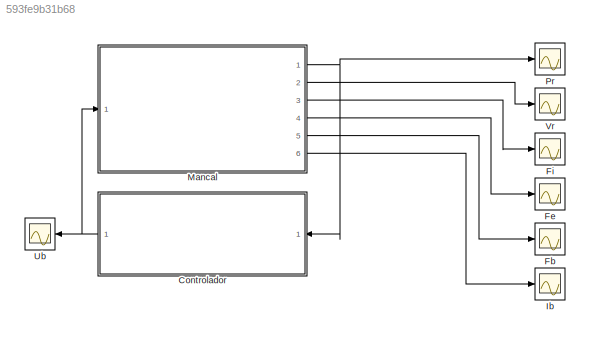
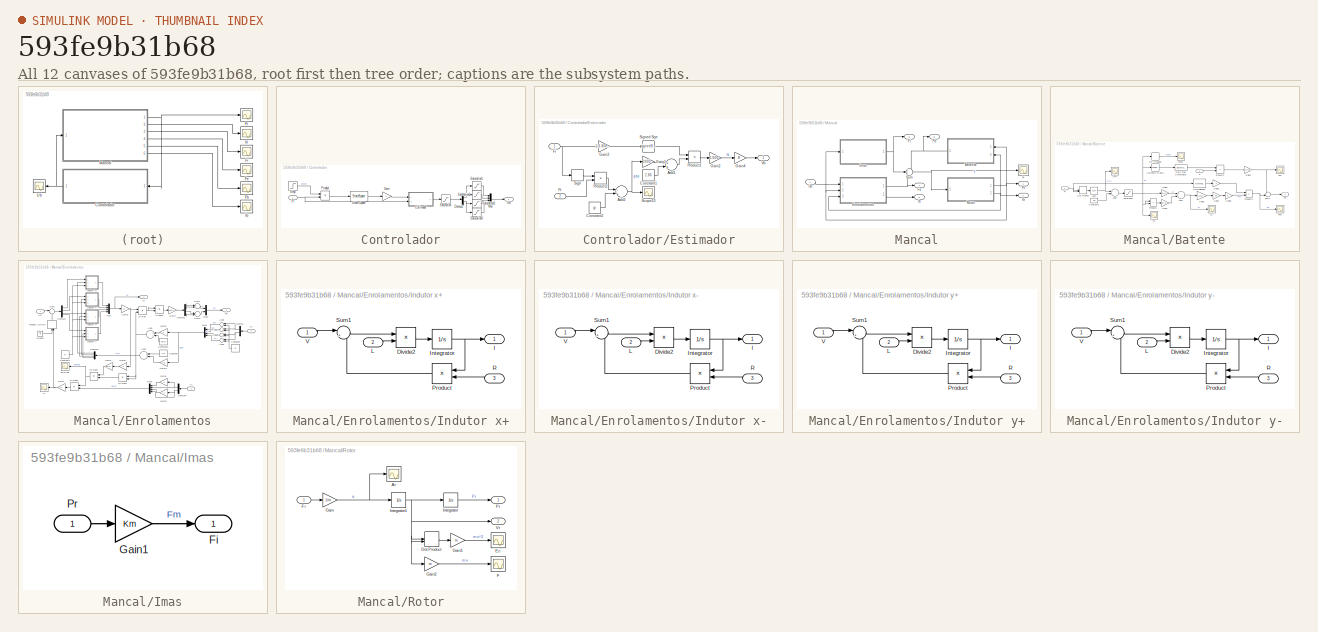
[diagram: thumbnail index - all 12 canvases of the model, root first then tree order]
MODEL slx_593fe9b31b68
KIND model
BLOCK [SubSystem] Controlador
  FunctionWithSeparateData = off
  MaskHideContents = off
  MinAlgLoopOccurrences = off
  Opaque = off
  Ports = [1, 1]
  PropExecContextOutsideSubsystem = off
  RTWSystemCode = Auto
  RequestExecContextInheritance = off
BLOCK [Demux] Controlador/Demux1
  DisplayOption = bar
  Outputs = 2
  Ports = [1, 2]
BLOCK [SubSystem] Controlador/Estimador
  FunctionWithSeparateData = off
  MaskHideContents = off
  MinAlgLoopOccurrences = off
  Opaque = off
  Ports = [2, 1]
  PropExecContextOutsideSubsystem = off
  RTWSystemCode = Auto
  RequestExecContextInheritance = off
BLOCK [Sum] Controlador/Estimador/Add1
  InputSameDT = off
  OutDataTypeStr = Inherit: Inherit via internal rule
  Ports = [2, 1]
  SaturateOnIntegerOverflow = off
BLOCK [Sum] Controlador/Estimador/Add2
  InputSameDT = off
  Inputs = -+
  OutDataTypeStr = Inherit: Inherit via internal rule
  Ports = [2, 1]
  SaturateOnIntegerOverflow = off
BLOCK [Constant] Controlador/Estimador/Constant1
  Value = 2.86
BLOCK [Constant] Controlador/Estimador/Constant2
  Value = gi
BLOCK [Inport] Controlador/Estimador/Fi
  IconDisplay = Port number
BLOCK [Gain] Controlador/Estimador/Gain1
  Gain = 2000
  OutDataTypeStr = Inherit: Inherit via internal rule
  ParamDataTypeStr = Inherit: Inherit via internal rule
  SaturateOnIntegerOverflow = off
BLOCK [Gain] Controlador/Estimador/Gain2
  Gain = 1/300
  OutDataTypeStr = Inherit: Inherit via internal rule
  ParamDataTypeStr = Inherit: Inherit via internal rule
  SaturateOnIntegerOverflow = off
BLOCK [Gain] Controlador/Estimador/Gain3
  Gain = 1/3.80e-3
  OutDataTypeStr = Inherit: Inherit via internal rule
  ParamDataTypeStr = Inherit: Inherit via internal rule
  SaturateOnIntegerOverflow = off
BLOCK [Gain] Controlador/Estimador/Gain4
  Gain = R
  OutDataTypeStr = Inherit: Inherit via internal rule
  ParamDataTypeStr = Inherit: Inherit via internal rule
  SaturateOnIntegerOverflow = off
BLOCK [Inport] Controlador/Estimador/Pr
  IconDisplay = Port number
  Port = 2
BLOCK [Product] Controlador/Estimador/Product1
  InputSameDT = off
  OutDataTypeStr = Inherit: Inherit via internal rule
  Ports = [2, 1]
  RndMeth = Floor
  SaturateOnIntegerOverflow = off
BLOCK [Product] Controlador/Estimador/Product2
  InputSameDT = off
  OutDataTypeStr = Inherit: Inherit via internal rule
  Ports = [2, 1]
  RndMeth = Floor
  SaturateOnIntegerOverflow = off
BLOCK [Scope] Controlador/Estimador/Scope10
  DataFormat = StructureWithTime
  Floating = off
  LimitDataPoints = off
  NumInputPorts = 1
  Ports = [1]
  SampleTime = 0
  SaveName = ScopeData11
  ShowLegends = off
  TimeRange = 2.85171102661597
  YMax = 0.0006
  YMin = 0.00015
BLOCK [Signum] Controlador/Estimador/Sign
BLOCK [Sqrt] Controlador/Estimador/Signed Sqrt
  Operator = signedSqrt
BLOCK [Outport] Controlador/Estimador/Vb
  IconDisplay = Port number
BLOCK [Gain] Controlador/Gain
  Gain = -1
  OutDataTypeStr = Inherit: Inherit via internal rule
  ParamDataTypeStr = Inherit: Inherit via internal rule
  SaturateOnIntegerOverflow = off
BLOCK [Mux] Controlador/Mux
  DisplayOption = bar
  Ports = [4, 1]
BLOCK [Inport] Controlador/Pr
  IconDisplay = Port number
BLOCK [Product] Controlador/Product
  InputSameDT = off
  OutDataTypeStr = Inherit: Inherit via internal rule
  Ports = [2, 1]
  RndMeth = Floor
  SaturateOnIntegerOverflow = off
BLOCK [Saturate] Controlador/Saturation
  InputPortMap = u0
  LowerLimit = -Vmax
  Ports = [1, 1]
  UpperLimit = Vmax
BLOCK [Saturate] Controlador/Saturation1
  InputPortMap = u0
  LowerLimit = 0
  Ports = [1, 1]
  UpperLimit = Inf
BLOCK [Saturate] Controlador/Saturation2
  InputPortMap = u0
  LowerLimit = -Inf
  Ports = [1, 1]
  UpperLimit = 0
BLOCK [Saturate] Controlador/Saturation3
  InputPortMap = u0
  LowerLimit = 0
  Ports = [1, 1]
  UpperLimit = Inf
BLOCK [Saturate] Controlador/Saturation4
  InputPortMap = u0
  LowerLimit = -Inf
  Ports = [1, 1]
  UpperLimit = 0
BLOCK [StateSpace] Controlador/State-Space
  A = ss([C 1; 1 C]).A
  B = ss([C 1; 1 C]).B
  C = ss([C 1; 1 C]).C
  D = ss([C 1; 1 C]).D
BLOCK [Step] Controlador/Step
  SampleTime = 0
BLOCK [Outport] Controlador/Ub
  IconDisplay = Port number
BLOCK [Scope] Fb
  DataFormat = StructureWithTime
  Floating = off
  LimitDataPoints = off
  NumInputPorts = 1
  Ports = [1]
  SampleTime = 0
  SaveName = ScopeData6
  ShowLegends = off
  YMax = 200000
  YMin = -200000
BLOCK [Scope] Fe
  DataFormat = StructureWithTime
  Floating = off
  LimitDataPoints = off
  NumInputPorts = 1
  Ports = [1]
  SampleTime = 0
  SaveName = ScopeData2
  ShowLegends = off
  YMax = 25
  YMin = -500
BLOCK [Scope] Fi
  DataFormat = StructureWithTime
  Floating = off
  LimitDataPoints = off
  NumInputPorts = 1
  Ports = [1]
  SampleTime = 0
  SaveName = ScopeData3
  ShowLegends = off
  YMax = 450
  YMin = 0
BLOCK [Scope] Ib
  DataFormat = StructureWithTime
  Floating = off
  LimitDataPoints = off
  NumInputPorts = 1
  Ports = [1]
  SampleTime = 0
  SaveName = ScopeData5
  ShowLegends = off
  YMax = 4
  YMin = -4
BLOCK [SubSystem] Mancal
  FunctionWithSeparateData = off
  MaskHideContents = off
  MinAlgLoopOccurrences = off
  Opaque = off
  Ports = [1, 6]
  PropExecContextOutsideSubsystem = off
  RTWSystemCode = Auto
  RequestExecContextInheritance = off
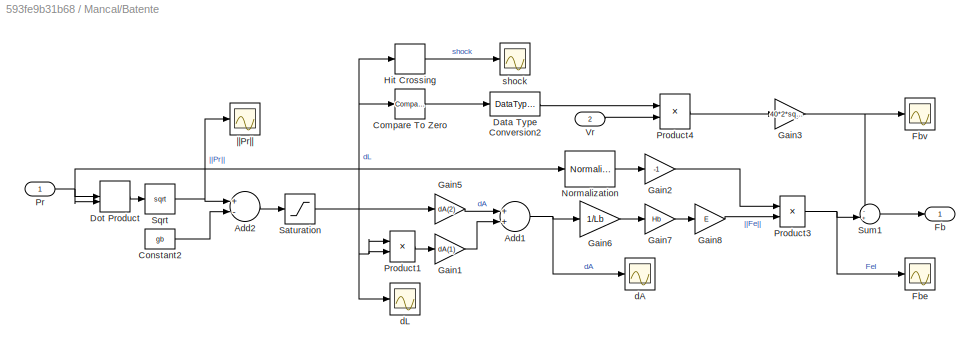
BLOCK [SubSystem] Mancal/Batente
  FunctionWithSeparateData = off
  MaskHideContents = off
  MinAlgLoopOccurrences = off
  Opaque = off
  Ports = [2, 1]
  PropExecContextOutsideSubsystem = off
  RTWSystemCode = Auto
  RequestExecContextInheritance = off
BLOCK [Sum] Mancal/Batente/Add1
  InputSameDT = off
  OutDataTypeStr = Inherit: Inherit via internal rule
  Ports = [2, 1]
  SaturateOnIntegerOverflow = off
BLOCK [Sum] Mancal/Batente/Add2
  InputSameDT = off
  Inputs = +-
  OutDataTypeStr = Inherit: Inherit via internal rule
  Ports = [2, 1]
  SaturateOnIntegerOverflow = off
BLOCK [Reference] Mancal/Batente/Compare To Zero  REF=simulink/Logic and Bit
Operations/Compare
To Zero
  OutDataTypeStr = boolean
  Ports = [1, 1]
  SourceBlock = simulink/Logic and Bit\nOperations/Compare\nTo Zero
  SourceType = Compare To Zero
  ZeroCross = on
  relop = >
BLOCK [Constant] Mancal/Batente/Constant2
  Value = gb
BLOCK [DataTypeConversion] Mancal/Batente/Data Type Conversion2
  RndMeth = Floor
  SaturateOnIntegerOverflow = off
BLOCK [DotProduct] Mancal/Batente/Dot Product
  OutDataTypeStr = Inherit: Inherit via internal rule
BLOCK [Outport] Mancal/Batente/Fb
  IconDisplay = Port number
BLOCK [Scope] Mancal/Batente/Fbe
  DataFormat = StructureWithTime
  Floating = off
  LimitDataPoints = off
  NumInputPorts = 1
  Ports = [1]
  SampleTime = 0
  SaveName = ScopeData15
  ShowLegends = off
  TimeRange = 0.0002829354553492485
  YMax = 100000
  YMin = -100000
BLOCK [Scope] Mancal/Batente/Fbv
  DataFormat = StructureWithTime
  Floating = off
  LimitDataPoints = off
  NumInputPorts = 1
  Ports = [1]
  SampleTime = 0
  SaveName = ScopeData8
  ShowLegends = off
  TimeRange = 0.1
  YMax = 225000
  YMin = -225000
BLOCK [Gain] Mancal/Batente/Gain1
  Gain = dA(1)
  OutDataTypeStr = Inherit: Inherit via internal rule
  ParamDataTypeStr = Inherit: Inherit via internal rule
  SaturateOnIntegerOverflow = off
BLOCK [Gain] Mancal/Batente/Gain2
  Gain = -1
  OutDataTypeStr = Inherit: Inherit via internal rule
  ParamDataTypeStr = Inherit: Inherit via internal rule
  SaturateOnIntegerOverflow = off
BLOCK [Gain] Mancal/Batente/Gain3
  Gain = 40*2*sqrt(Kb*m)
  OutDataTypeStr = Inherit: Inherit via internal rule
  ParamDataTypeStr = Inherit: Inherit via internal rule
  SaturateOnIntegerOverflow = off
BLOCK [Gain] Mancal/Batente/Gain5
  Gain = dA(2)
  OutDataTypeStr = Inherit: Inherit via internal rule
  ParamDataTypeStr = Inherit: Inherit via internal rule
  SaturateOnIntegerOverflow = off
BLOCK [Gain] Mancal/Batente/Gain6
  Gain = 1/Lb
  OutDataTypeStr = Inherit: Inherit via internal rule
  ParamDataTypeStr = Inherit: Inherit via internal rule
  SaturateOnIntegerOverflow = off
BLOCK [Gain] Mancal/Batente/Gain7
  Gain = Hb
  OutDataTypeStr = Inherit: Inherit via internal rule
  ParamDataTypeStr = Inherit: Inherit via internal rule
  SaturateOnIntegerOverflow = off
BLOCK [Gain] Mancal/Batente/Gain8
  Gain = E
  OutDataTypeStr = Inherit: Inherit via internal rule
  ParamDataTypeStr = Inherit: Inherit via internal rule
  SaturateOnIntegerOverflow = off
BLOCK [HitCross] Mancal/Batente/Hit Crossing
  HitCrossingDirection = rising
  Ports = [1, 1]
BLOCK [Reference] Mancal/Batente/Normalization  REF=dspmathops/Normalization
  Bias = 1e-10
  ColComp = on
  Dimension = 1
  LockScale = off
  NormOver = Each column
  NormType = 2-norm
  Ports = [1, 1]
  SourceBlock = dspmathops/Normalization
  SourceType = Normalization
  accumDataTypeStr = Inherit: Same as product output
  accumFracLength = 30
  accumLastDataTypeStr = Inherit: Same as product output
  accumMode = Same as product output
  accumWordLength = 32
  additionalParams = off
  allowOverrides = on
  outputDataTypeStr = Inherit: Same as product output
  outputFracLength = 32
  outputLastDataTypeStr = Inherit: Same as product output
  outputMax = []
  outputMin = []
  outputMode = Same as product output
  outputWordLength = 32
  overflowMode = off
  prodOutputDataTypeStr = Inherit: Same as input
  prodOutputFracLength = 32
  prodOutputLastDataTypeStr = Inherit: Same as input
  prodOutputMode = Same as input
  prodOutputWordLength = 32
  roundingMode = Floor
BLOCK [Inport] Mancal/Batente/Pr
  IconDisplay = Port number
BLOCK [Product] Mancal/Batente/Product1
  InputSameDT = off
  OutDataTypeStr = Inherit: Inherit via internal rule
  Ports = [2, 1]
  RndMeth = Floor
  SaturateOnIntegerOverflow = off
BLOCK [Product] Mancal/Batente/Product3
  InputSameDT = off
  OutDataTypeStr = Inherit: Inherit via internal rule
  Ports = [2, 1]
  RndMeth = Floor
  SaturateOnIntegerOverflow = off
BLOCK [Product] Mancal/Batente/Product4
  InputSameDT = off
  OutDataTypeStr = Inherit: Inherit via internal rule
  Ports = [2, 1]
  RndMeth = Floor
  SaturateOnIntegerOverflow = off
BLOCK [Saturate] Mancal/Batente/Saturation
  InputPortMap = u0
  LowerLimit = 0
  Ports = [1, 1]
  UpperLimit = Inf
BLOCK [Sqrt] Mancal/Batente/Sqrt
BLOCK [Sum] Mancal/Batente/Sum1
  IconShape = round
  InputSameDT = off
  Inputs = -+|
  OutDataTypeStr = Inherit: Inherit via internal rule
  Ports = [2, 1]
  SaturateOnIntegerOverflow = off
BLOCK [Inport] Mancal/Batente/Vr
  IconDisplay = Port number
  Port = 2
BLOCK [Scope] Mancal/Batente/dA
  DataFormat = StructureWithTime
  Floating = off
  LimitDataPoints = off
  NumInputPorts = 1
  Ports = [1]
  SampleTime = 0
  SaveName = ScopeData4
  ShowLegends = off
  TimeRange = 0.0002829354553492485
  YMax = 3.9158e-05
  YMin = 3.91545e-05
BLOCK [Scope] Mancal/Batente/dL
  DataFormat = StructureWithTime
  Floating = off
  LimitDataPoints = off
  NumInputPorts = 1
  Ports = [1]
  SampleTime = 0
  SaveName = ScopeData7
  ShowLegends = off
  TimeRange = 0.1
  YMax = 1.4315e-06
  YMin = 1.4215e-06
BLOCK [Scope] Mancal/Batente/shock
  DataFormat = StructureWithTime
  Floating = off
  LimitDataPoints = off
  NumInputPorts = 1
  Ports = [1]
  SampleTime = 0
  SaveName = ScopeData19
  ShowLegends = off
  TimeRange = 0.0002829354553492485
  YMax = 5.54639e-16
  YMin = 5.54637e-16
BLOCK [Scope] Mancal/Batente/||Pr||
  DataFormat = StructureWithTime
  Floating = off
  LimitDataPoints = off
  NumInputPorts = 1
  Ports = [1]
  SampleTime = 0
  SaveName = ScopeData18
  ShowLegends = off
  TimeRange = 0.0002829354553492485
  YMax = 0
  YMin = -2.75
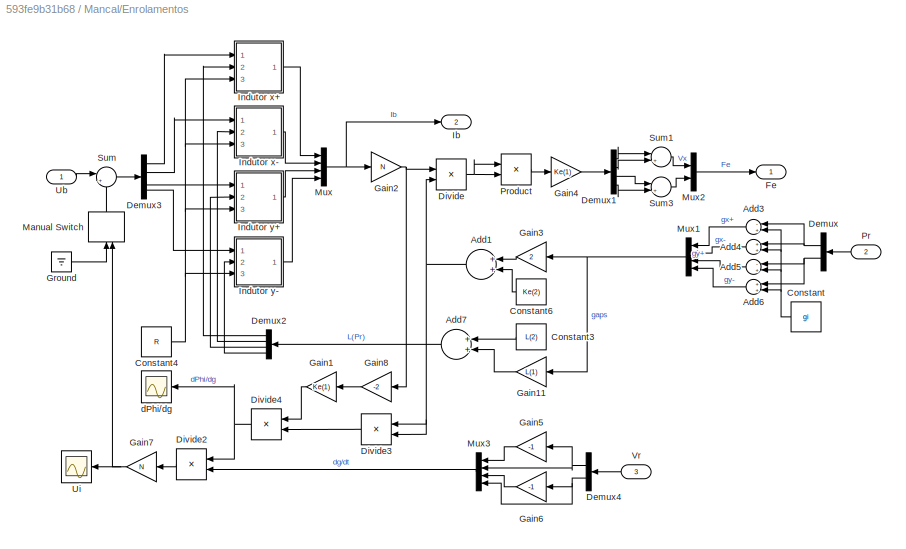
BLOCK [SubSystem] Mancal/Enrolamentos
  FunctionWithSeparateData = off
  MaskHideContents = off
  MinAlgLoopOccurrences = off
  Opaque = off
  Ports = [3, 2]
  PropExecContextOutsideSubsystem = off
  RTWSystemCode = Auto
  RequestExecContextInheritance = off
BLOCK [Sum] Mancal/Enrolamentos/Add1
  InputSameDT = off
  OutDataTypeStr = Inherit: Inherit via internal rule
  Ports = [2, 1]
  SaturateOnIntegerOverflow = off
BLOCK [Sum] Mancal/Enrolamentos/Add3
  InputSameDT = off
  Inputs = -+
  OutDataTypeStr = Inherit: Inherit via internal rule
  Ports = [2, 1]
  SaturateOnIntegerOverflow = off
BLOCK [Sum] Mancal/Enrolamentos/Add4
  InputSameDT = off
  OutDataTypeStr = Inherit: Inherit via internal rule
  Ports = [2, 1]
  SaturateOnIntegerOverflow = off
BLOCK [Sum] Mancal/Enrolamentos/Add5
  InputSameDT = off
  Inputs = -+
  OutDataTypeStr = Inherit: Inherit via internal rule
  Ports = [2, 1]
  SaturateOnIntegerOverflow = off
BLOCK [Sum] Mancal/Enrolamentos/Add6
  InputSameDT = off
  OutDataTypeStr = Inherit: Inherit via internal rule
  Ports = [2, 1]
  SaturateOnIntegerOverflow = off
BLOCK [Sum] Mancal/Enrolamentos/Add7
  InputSameDT = off
  OutDataTypeStr = Inherit: Inherit via internal rule
  Ports = [2, 1]
  SaturateOnIntegerOverflow = off
BLOCK [Constant] Mancal/Enrolamentos/Constant
  Value = gi
BLOCK [Constant] Mancal/Enrolamentos/Constant3
  Value = L(2)
BLOCK [Constant] Mancal/Enrolamentos/Constant4
  Value = R
BLOCK [Constant] Mancal/Enrolamentos/Constant6
  Value = Ke(2)
BLOCK [Demux] Mancal/Enrolamentos/Demux
  DisplayOption = bar
  Outputs = 2
  Ports = [1, 2]
BLOCK [Demux] Mancal/Enrolamentos/Demux1
  DisplayOption = bar
  Ports = [1, 4]
BLOCK [Demux] Mancal/Enrolamentos/Demux2
  DisplayOption = bar
  Ports = [1, 4]
BLOCK [Demux] Mancal/Enrolamentos/Demux3
  DisplayOption = bar
  Ports = [1, 4]
BLOCK [Demux] Mancal/Enrolamentos/Demux4
  DisplayOption = bar
  Outputs = 2
  Ports = [1, 2]
BLOCK [Product] Mancal/Enrolamentos/Divide
  InputSameDT = off
  Inputs = */
  OutDataTypeStr = Inherit: Inherit via internal rule
  Ports = [2, 1]
  RndMeth = Floor
  SaturateOnIntegerOverflow = off
BLOCK [Product] Mancal/Enrolamentos/Divide2
  InputSameDT = off
  Inputs = **
  OutDataTypeStr = Inherit: Inherit via internal rule
  Ports = [2, 1]
  RndMeth = Floor
  SaturateOnIntegerOverflow = off
BLOCK [Product] Mancal/Enrolamentos/Divide3
  InputSameDT = off
  Inputs = **
  OutDataTypeStr = Inherit: Inherit via internal rule
  Ports = [2, 1]
  RndMeth = Floor
  SaturateOnIntegerOverflow = off
BLOCK [Product] Mancal/Enrolamentos/Divide4
  InputSameDT = off
  Inputs = */
  OutDataTypeStr = Inherit: Inherit via internal rule
  Ports = [2, 1]
  RndMeth = Floor
  SaturateOnIntegerOverflow = off
BLOCK [Outport] Mancal/Enrolamentos/Fe
  IconDisplay = Port number
BLOCK [Gain] Mancal/Enrolamentos/Gain1
  Gain = Ke(1)
  OutDataTypeStr = Inherit: Inherit via internal rule
  ParamDataTypeStr = Inherit: Inherit via internal rule
  SaturateOnIntegerOverflow = off
BLOCK [Gain] Mancal/Enrolamentos/Gain11
  Gain = L(1)
  OutDataTypeStr = Inherit: Inherit via internal rule
  ParamDataTypeStr = Inherit: Inherit via internal rule
  SaturateOnIntegerOverflow = off
BLOCK [Gain] Mancal/Enrolamentos/Gain2
  Gain = N
  OutDataTypeStr = Inherit: Inherit via internal rule
  ParamDataTypeStr = Inherit: Inherit via internal rule
  SaturateOnIntegerOverflow = off
BLOCK [Gain] Mancal/Enrolamentos/Gain3
  Gain = 2
  OutDataTypeStr = Inherit: Inherit via internal rule
  ParamDataTypeStr = Inherit: Inherit via internal rule
  SaturateOnIntegerOverflow = off
BLOCK [Gain] Mancal/Enrolamentos/Gain4
  Gain = Ke(1)
  OutDataTypeStr = Inherit: Inherit via internal rule
  ParamDataTypeStr = Inherit: Inherit via internal rule
  SaturateOnIntegerOverflow = off
BLOCK [Gain] Mancal/Enrolamentos/Gain5
  Gain = -1
  OutDataTypeStr = Inherit: Inherit via internal rule
  ParamDataTypeStr = Inherit: Inherit via internal rule
  SaturateOnIntegerOverflow = off
BLOCK [Gain] Mancal/Enrolamentos/Gain6
  Gain = -1
  OutDataTypeStr = Inherit: Inherit via internal rule
  ParamDataTypeStr = Inherit: Inherit via internal rule
  SaturateOnIntegerOverflow = off
BLOCK [Gain] Mancal/Enrolamentos/Gain7
  Gain = N
  OutDataTypeStr = Inherit: Inherit via internal rule
  ParamDataTypeStr = Inherit: Inherit via internal rule
  SaturateOnIntegerOverflow = off
BLOCK [Gain] Mancal/Enrolamentos/Gain8
  Gain = -2
  OutDataTypeStr = Inherit: Inherit via internal rule
  ParamDataTypeStr = Inherit: Inherit via internal rule
  SaturateOnIntegerOverflow = off
BLOCK [Ground] Mancal/Enrolamentos/Ground
BLOCK [Outport] Mancal/Enrolamentos/Ib
  IconDisplay = Port number
  Port = 2
BLOCK [SubSystem] Mancal/Enrolamentos/Indutor x+
  FunctionWithSeparateData = off
  MaskHideContents = off
  MinAlgLoopOccurrences = off
  Opaque = off
  Ports = [3, 1]
  PropExecContextOutsideSubsystem = off
  RTWSystemCode = Auto
  RequestExecContextInheritance = off
BLOCK [Product] Mancal/Enrolamentos/Indutor x+/Divide2
  InputSameDT = off
  Inputs = */
  OutDataTypeStr = Inherit: Inherit via internal rule
  Ports = [2, 1]
  RndMeth = Floor
  SaturateOnIntegerOverflow = off
BLOCK [Outport] Mancal/Enrolamentos/Indutor x+/I
  IconDisplay = Port number
BLOCK [Integrator] Mancal/Enrolamentos/Indutor x+/Integrator
  Ports = [1, 1]
BLOCK [Inport] Mancal/Enrolamentos/Indutor x+/L
  IconDisplay = Port number
  Port = 2
BLOCK [Product] Mancal/Enrolamentos/Indutor x+/Product
  InputSameDT = off
  OutDataTypeStr = Inherit: Inherit via internal rule
  Ports = [2, 1]
  RndMeth = Floor
  SaturateOnIntegerOverflow = off
BLOCK [Inport] Mancal/Enrolamentos/Indutor x+/R
  IconDisplay = Port number
  Port = 3
BLOCK [Sum] Mancal/Enrolamentos/Indutor x+/Sum1
  IconShape = round
  InputSameDT = off
  Inputs = |+-
  OutDataTypeStr = Inherit: Inherit via internal rule
  Ports = [2, 1]
  SaturateOnIntegerOverflow = off
BLOCK [Inport] Mancal/Enrolamentos/Indutor x+/V
  IconDisplay = Port number
BLOCK [SubSystem] Mancal/Enrolamentos/Indutor x-
  FunctionWithSeparateData = off
  MaskHideContents = off
  MinAlgLoopOccurrences = off
  Opaque = off
  Ports = [3, 1]
  PropExecContextOutsideSubsystem = off
  RTWSystemCode = Auto
  RequestExecContextInheritance = off
BLOCK [Product] Mancal/Enrolamentos/Indutor x-/Divide2
  InputSameDT = off
  Inputs = */
  OutDataTypeStr = Inherit: Inherit via internal rule
  Ports = [2, 1]
  RndMeth = Floor
  SaturateOnIntegerOverflow = off
BLOCK [Outport] Mancal/Enrolamentos/Indutor x-/I
  IconDisplay = Port number
BLOCK [Integrator] Mancal/Enrolamentos/Indutor x-/Integrator
  Ports = [1, 1]
BLOCK [Inport] Mancal/Enrolamentos/Indutor x-/L
  IconDisplay = Port number
  Port = 2
BLOCK [Product] Mancal/Enrolamentos/Indutor x-/Product
  InputSameDT = off
  OutDataTypeStr = Inherit: Inherit via internal rule
  Ports = [2, 1]
  RndMeth = Floor
  SaturateOnIntegerOverflow = off
BLOCK [Inport] Mancal/Enrolamentos/Indutor x-/R
  IconDisplay = Port number
  Port = 3
BLOCK [Sum] Mancal/Enrolamentos/Indutor x-/Sum1
  IconShape = round
  InputSameDT = off
  Inputs = |+-
  OutDataTypeStr = Inherit: Inherit via internal rule
  Ports = [2, 1]
  SaturateOnIntegerOverflow = off
BLOCK [Inport] Mancal/Enrolamentos/Indutor x-/V
  IconDisplay = Port number
BLOCK [SubSystem] Mancal/Enrolamentos/Indutor y+
  FunctionWithSeparateData = off
  MaskHideContents = off
  MinAlgLoopOccurrences = off
  Opaque = off
  Ports = [3, 1]
  PropExecContextOutsideSubsystem = off
  RTWSystemCode = Auto
  RequestExecContextInheritance = off
BLOCK [Product] Mancal/Enrolamentos/Indutor y+/Divide2
  InputSameDT = off
  Inputs = */
  OutDataTypeStr = Inherit: Inherit via internal rule
  Ports = [2, 1]
  RndMeth = Floor
  SaturateOnIntegerOverflow = off
BLOCK [Outport] Mancal/Enrolamentos/Indutor y+/I
  IconDisplay = Port number
BLOCK [Integrator] Mancal/Enrolamentos/Indutor y+/Integrator
  Ports = [1, 1]
BLOCK [Inport] Mancal/Enrolamentos/Indutor y+/L
  IconDisplay = Port number
  Port = 2
BLOCK [Product] Mancal/Enrolamentos/Indutor y+/Product
  InputSameDT = off
  OutDataTypeStr = Inherit: Inherit via internal rule
  Ports = [2, 1]
  RndMeth = Floor
  SaturateOnIntegerOverflow = off
BLOCK [Inport] Mancal/Enrolamentos/Indutor y+/R
  IconDisplay = Port number
  Port = 3
BLOCK [Sum] Mancal/Enrolamentos/Indutor y+/Sum1
  IconShape = round
  InputSameDT = off
  Inputs = |+-
  OutDataTypeStr = Inherit: Inherit via internal rule
  Ports = [2, 1]
  SaturateOnIntegerOverflow = off
BLOCK [Inport] Mancal/Enrolamentos/Indutor y+/V
  IconDisplay = Port number
BLOCK [SubSystem] Mancal/Enrolamentos/Indutor y-
  FunctionWithSeparateData = off
  MaskHideContents = off
  MinAlgLoopOccurrences = off
  Opaque = off
  Ports = [3, 1]
  PropExecContextOutsideSubsystem = off
  RTWSystemCode = Auto
  RequestExecContextInheritance = off
BLOCK [Product] Mancal/Enrolamentos/Indutor y-/Divide2
  InputSameDT = off
  Inputs = */
  OutDataTypeStr = Inherit: Inherit via internal rule
  Ports = [2, 1]
  RndMeth = Floor
  SaturateOnIntegerOverflow = off
BLOCK [Outport] Mancal/Enrolamentos/Indutor y-/I
  IconDisplay = Port number
BLOCK [Integrator] Mancal/Enrolamentos/Indutor y-/Integrator
  Ports = [1, 1]
BLOCK [Inport] Mancal/Enrolamentos/Indutor y-/L
  IconDisplay = Port number
  Port = 2
BLOCK [Product] Mancal/Enrolamentos/Indutor y-/Product
  InputSameDT = off
  OutDataTypeStr = Inherit: Inherit via internal rule
  Ports = [2, 1]
  RndMeth = Floor
  SaturateOnIntegerOverflow = off
BLOCK [Inport] Mancal/Enrolamentos/Indutor y-/R
  IconDisplay = Port number
  Port = 3
BLOCK [Sum] Mancal/Enrolamentos/Indutor y-/Sum1
  IconShape = round
  InputSameDT = off
  Inputs = |+-
  OutDataTypeStr = Inherit: Inherit via internal rule
  Ports = [2, 1]
  SaturateOnIntegerOverflow = off
BLOCK [Inport] Mancal/Enrolamentos/Indutor y-/V
  IconDisplay = Port number
BLOCK [ManualSwitch] Mancal/Enrolamentos/Manual Switch
BLOCK [Mux] Mancal/Enrolamentos/Mux
  DisplayOption = bar
  Ports = [4, 1]
BLOCK [Mux] Mancal/Enrolamentos/Mux1
  DisplayOption = bar
  Ports = [4, 1]
BLOCK [Mux] Mancal/Enrolamentos/Mux2
  DisplayOption = bar
  Inputs = 2
  Ports = [2, 1]
BLOCK [Mux] Mancal/Enrolamentos/Mux3
  DisplayOption = bar
  Ports = [4, 1]
BLOCK [Inport] Mancal/Enrolamentos/Pr
  IconDisplay = Port number
  Port = 2
BLOCK [Product] Mancal/Enrolamentos/Product
  InputSameDT = off
  OutDataTypeStr = Inherit: Inherit via internal rule
  Ports = [2, 1]
  RndMeth = Floor
  SaturateOnIntegerOverflow = off
BLOCK [Sum] Mancal/Enrolamentos/Sum
  IconShape = round
  InputSameDT = off
  Inputs = |++
  OutDataTypeStr = Inherit: Inherit via internal rule
  Ports = [2, 1]
  SaturateOnIntegerOverflow = off
BLOCK [Sum] Mancal/Enrolamentos/Sum1
  IconShape = round
  InputSameDT = off
  Inputs = |+-|
  OutDataTypeStr = Inherit: Inherit via internal rule
  Ports = [2, 1]
  SaturateOnIntegerOverflow = off
BLOCK [Sum] Mancal/Enrolamentos/Sum3
  IconShape = round
  InputSameDT = off
  Inputs = |+-|
  OutDataTypeStr = Inherit: Inherit via internal rule
  Ports = [2, 1]
  SaturateOnIntegerOverflow = off
BLOCK [Inport] Mancal/Enrolamentos/Ub
  IconDisplay = Port number
BLOCK [Scope] Mancal/Enrolamentos/Ui
  DataFormat = StructureWithTime
  Floating = off
  LimitDataPoints = off
  NumInputPorts = 1
  Ports = [1]
  SampleTime = 0
  SaveName = ScopeData12
  ShowLegends = off
  TimeRange = 0.0002829354553492485
  YMax = 175
  YMin = -175
BLOCK [Inport] Mancal/Enrolamentos/Vr
  IconDisplay = Port number
  Port = 3
BLOCK [Scope] Mancal/Enrolamentos/dPhi//dg
  DataFormat = StructureWithTime
  Floating = off
  LimitDataPoints = off
  NumInputPorts = 1
  Ports = [1]
  SampleTime = 0
  SaveName = ScopeData14
  ShowLegends = off
  TimeRange = 0.0002829354553492485
  YMax = 100000
  YMin = -100000
BLOCK [Scope] Mancal/F
  DataFormat = StructureWithTime
  Floating = off
  LimitDataPoints = off
  NumInputPorts = 1
  Ports = [1]
  SampleTime = 0
  SaveName = ScopeData13
  ShowLegends = off
  TimeRange = 1
  YMax = 200000
  YMin = -200000
BLOCK [Outport] Mancal/Fb
  IconDisplay = Port number
  Port = 5
BLOCK [Outport] Mancal/Fe
  IconDisplay = Port number
  Port = 4
BLOCK [Outport] Mancal/Fi
  IconDisplay = Port number
  Port = 3
BLOCK [Outport] Mancal/Ib
  IconDisplay = Port number
  Port = 6
BLOCK [SubSystem] Mancal/Imas
  FunctionWithSeparateData = off
  MaskHideContents = off
  MinAlgLoopOccurrences = off
  Opaque = off
  Ports = [1, 1]
  PropExecContextOutsideSubsystem = off
  RTWSystemCode = Auto
  RequestExecContextInheritance = off
BLOCK [Outport] Mancal/Imas/Fi
  IconDisplay = Port number
BLOCK [Gain] Mancal/Imas/Gain1
  Gain = Km
  OutDataTypeStr = Inherit: Inherit via internal rule
  ParamDataTypeStr = Inherit: Inherit via internal rule
  SaturateOnIntegerOverflow = off
BLOCK [Inport] Mancal/Imas/Pr
  IconDisplay = Port number
BLOCK [Outport] Mancal/Pr
  IconDisplay = Port number
BLOCK [SubSystem] Mancal/Rotor
  FunctionWithSeparateData = off
  MaskHideContents = off
  MinAlgLoopOccurrences = off
  Opaque = off
  Ports = [1, 2]
  PropExecContextOutsideSubsystem = off
  RTWSystemCode = Auto
  RequestExecContextInheritance = off
BLOCK [Scope] Mancal/Rotor/Ar
  DataFormat = StructureWithTime
  Floating = off
  LimitDataPoints = off
  NumInputPorts = 1
  Ports = [1]
  SampleTime = 0
  SaveName = ScopeData9
  ShowLegends = off
  TimeRange = 1
  YMax = 200000
  YMin = -200000
BLOCK [DotProduct] Mancal/Rotor/Dot Product
  OutDataTypeStr = Inherit: Inherit via internal rule
BLOCK [Scope] Mancal/Rotor/Ec
  DataFormat = StructureWithTime
  Floating = off
  LimitDataPoints = off
  NumInputPorts = 1
  Ports = [1]
  SampleTime = 0
  SaveName = ScopeData16
  ShowLegends = off
  TimeRange = 0.25
  YMax = 0.09
  YMin = 0
BLOCK [Inport] Mancal/Rotor/Fr
  IconDisplay = Port number
BLOCK [Gain] Mancal/Rotor/Gain
  Gain = 1/m
  OutDataTypeStr = Inherit: Inherit via internal rule
  ParamDataTypeStr = Inherit: Inherit via internal rule
  SaturateOnIntegerOverflow = off
BLOCK [Gain] Mancal/Rotor/Gain1
  Gain = m
  OutDataTypeStr = Inherit: Inherit via internal rule
  ParamDataTypeStr = Inherit: Inherit via internal rule
  SaturateOnIntegerOverflow = off
BLOCK [Gain] Mancal/Rotor/Gain2
  Gain = m
  OutDataTypeStr = Inherit: Inherit via internal rule
  ParamDataTypeStr = Inherit: Inherit via internal rule
  SaturateOnIntegerOverflow = off
BLOCK [Integrator] Mancal/Rotor/Integrator
  InitialCondition = [.001 .002]*1e-3
  LowerSaturationLimit = -Inf
  Ports = [1, 1]
  UpperSaturationLimit = Inf
BLOCK [Integrator] Mancal/Rotor/Integrator1
  Ports = [1, 1]
BLOCK [Outport] Mancal/Rotor/Pr
  IconDisplay = Port number
BLOCK [Outport] Mancal/Rotor/Vr
  IconDisplay = Port number
  Port = 2
BLOCK [Scope] Mancal/Rotor/p
  DataFormat = StructureWithTime
  Floating = off
  LimitDataPoints = off
  NumInputPorts = 1
  Ports = [1]
  SampleTime = 0
  SaveName = ScopeData17
  ShowLegends = off
  TimeRange = 1
  YMax = 200000
  YMin = -200000
BLOCK [Sum] Mancal/Sum
  IconShape = round
  InputSameDT = off
  Inputs = +++
  OutDataTypeStr = Inherit: Inherit via internal rule
  Ports = [3, 1]
  SaturateOnIntegerOverflow = off
BLOCK [Inport] Mancal/Ub
  IconDisplay = Port number
BLOCK [Outport] Mancal/Vr
  IconDisplay = Port number
  Port = 2
BLOCK [Scope] Pr
  DataFormat = StructureWithTime
  Floating = off
  LimitDataPoints = off
  NumInputPorts = 1
  Ports = [1]
  SampleTime = 0
  ShowLegends = off
  TimeRange = 3
  YMax = 3e-05
  YMin = -1.75e-05
BLOCK [Scope] Ub
  DataFormat = StructureWithTime
  Floating = off
  LimitDataPoints = off
  NumInputPorts = 1
  Ports = [1]
  SampleTime = 0
  SaveName = ScopeData10
  ShowLegends = off
  TimeRange = 0.1
  YMax = 10
  YMin = 0
BLOCK [Scope] Vr
  DataFormat = StructureWithTime
  Floating = off
  LimitDataPoints = off
  NumInputPorts = 1
  Ports = [1]
  SampleTime = 0
  SaveName = ScopeData1
  ShowLegends = off
  YMax = 45
  YMin = -45
NET Controlador/Demux1:1 -> Controlador/Saturation1:1, Controlador/Saturation2:1
NET Controlador/Demux1:2 -> Controlador/Saturation3:1, Controlador/Saturation4:1
LINE Controlador/Estimador/Add1:1 -> Controlador/Estimador/Product1:2
NET Controlador/Estimador/Add2:1 -> Controlador/Estimador/Gain1:1, Controlador/Estimador/Scope10:1
LINE Controlador/Estimador/Constant1:1 -> Controlador/Estimador/Add1:2
LINE Controlador/Estimador/Constant2:1 -> Controlador/Estimador/Add2:2
NET Controlador/Estimador/Fi:1 -> Controlador/Estimador/Gain3:1, Controlador/Estimador/Sign:1
LINE Controlador/Estimador/Gain1:1 -> Controlador/Estimador/Add1:1
LINE Controlador/Estimador/Gain2:1 -> Controlador/Estimador/Gain4:1
LINE Controlador/Estimador/Gain3:1 -> Controlador/Estimador/Signed Sqrt:1
LINE Controlador/Estimador/Gain4:1 -> Controlador/Estimador/Vb:1
LINE Controlador/Estimador/Pr:1 -> Controlador/Estimador/Product2:2
LINE Controlador/Estimador/Product1:1 -> Controlador/Estimador/Gain2:1
LINE Controlador/Estimador/Product2:1 -> Controlador/Estimador/Add2:1
LINE Controlador/Estimador/Sign:1 -> Controlador/Estimador/Product2:1
LINE Controlador/Estimador/Signed Sqrt:1 -> Controlador/Estimador/Product1:1
LINE Controlador/Estimador:1 -> Controlador/Saturation:1
LINE Controlador/Gain:1 -> Controlador/Estimador:1
LINE Controlador/Mux:1 -> Controlador/Ub:1
NET Controlador/Pr:1 -> Controlador/Estimador:2, Controlador/Product:2
LINE Controlador/Product:1 -> Controlador/State-Space:1
LINE Controlador/Saturation1:1 -> Controlador/Mux:1
LINE Controlador/Saturation2:1 -> Controlador/Mux:2
LINE Controlador/Saturation3:1 -> Controlador/Mux:3
LINE Controlador/Saturation4:1 -> Controlador/Mux:4
LINE Controlador/Saturation:1 -> Controlador/Demux1:1
LINE Controlador/State-Space:1 -> Controlador/Gain:1
LINE Controlador/Step:1 -> Controlador/Product:1
NET Controlador:1 -> Mancal:1, Ub:1
NET Mancal/Batente/Add1:1 -> Mancal/Batente/Gain6:1, Mancal/Batente/dA:1
LINE Mancal/Batente/Add2:1 -> Mancal/Batente/Saturation:1
LINE Mancal/Batente/Compare To Zero:1 -> Mancal/Batente/Data Type Conversion2:1
LINE Mancal/Batente/Constant2:1 -> Mancal/Batente/Add2:2
LINE Mancal/Batente/Data Type Conversion2:1 -> Mancal/Batente/Product4:1
LINE Mancal/Batente/Dot Product:1 -> Mancal/Batente/Sqrt:1
LINE Mancal/Batente/Gain1:1 -> Mancal/Batente/Add1:2
LINE Mancal/Batente/Gain2:1 -> Mancal/Batente/Product3:1
NET Mancal/Batente/Gain3:1 -> Mancal/Batente/Fbv:1, Mancal/Batente/Sum1:1
LINE Mancal/Batente/Gain5:1 -> Mancal/Batente/Add1:1
LINE Mancal/Batente/Gain6:1 -> Mancal/Batente/Gain7:1
LINE Mancal/Batente/Gain7:1 -> Mancal/Batente/Gain8:1
LINE Mancal/Batente/Gain8:1 -> Mancal/Batente/Product3:2
LINE Mancal/Batente/Hit Crossing:1 -> Mancal/Batente/shock:1
LINE Mancal/Batente/Normalization:1 -> Mancal/Batente/Gain2:1
NET Mancal/Batente/Pr:1 -> Mancal/Batente/Dot Product:1, Mancal/Batente/Dot Product:2, Mancal/Batente/Normalization:1
LINE Mancal/Batente/Product1:1 -> Mancal/Batente/Gain1:1
NET Mancal/Batente/Product3:1 -> Mancal/Batente/Fbe:1, Mancal/Batente/Sum1:2
LINE Mancal/Batente/Product4:1 -> Mancal/Batente/Gain3:1
NET Mancal/Batente/Saturation:1 -> Mancal/Batente/Compare To Zero:1, Mancal/Batente/Gain5:1, Mancal/Batente/Hit Crossing:1, Mancal/Batente/Product1:1, Mancal/Batente/Product1:2, Mancal/Batente/dL:1
NET Mancal/Batente/Sqrt:1 -> Mancal/Batente/Add2:1, Mancal/Batente/||Pr||:1
LINE Mancal/Batente/Sum1:1 -> Mancal/Batente/Fb:1
LINE Mancal/Batente/Vr:1 -> Mancal/Batente/Product4:2
NET Mancal/Batente:1 -> Mancal/Fb:1, Mancal/Sum:1
NET Mancal/Enrolamentos/Add1:1 -> Mancal/Enrolamentos/Divide3:1, Mancal/Enrolamentos/Divide3:2, Mancal/Enrolamentos/Divide:2
LINE Mancal/Enrolamentos/Add3:1 -> Mancal/Enrolamentos/Mux1:1
LINE Mancal/Enrolamentos/Add4:1 -> Mancal/Enrolamentos/Mux1:2
LINE Mancal/Enrolamentos/Add5:1 -> Mancal/Enrolamentos/Mux1:3
LINE Mancal/Enrolamentos/Add6:1 -> Mancal/Enrolamentos/Mux1:4
LINE Mancal/Enrolamentos/Add7:1 -> Mancal/Enrolamentos/Demux2:1
LINE Mancal/Enrolamentos/Constant3:1 -> Mancal/Enrolamentos/Add7:1
NET Mancal/Enrolamentos/Constant4:1 -> Mancal/Enrolamentos/Indutor x+:3, Mancal/Enrolamentos/Indutor x-:3, Mancal/Enrolamentos/Indutor y+:3, Mancal/Enrolamentos/Indutor y-:3
LINE Mancal/Enrolamentos/Constant6:1 -> Mancal/Enrolamentos/Add1:2
NET Mancal/Enrolamentos/Constant:1 -> Mancal/Enrolamentos/Add3:2, Mancal/Enrolamentos/Add4:2, Mancal/Enrolamentos/Add5:2, Mancal/Enrolamentos/Add6:2
LINE Mancal/Enrolamentos/Demux1:1 -> Mancal/Enrolamentos/Sum1:1
LINE Mancal/Enrolamentos/Demux1:2 -> Mancal/Enrolamentos/Sum1:2
LINE Mancal/Enrolamentos/Demux1:3 -> Mancal/Enrolamentos/Sum3:1
LINE Mancal/Enrolamentos/Demux1:4 -> Mancal/Enrolamentos/Sum3:2
LINE Mancal/Enrolamentos/Demux2:1 -> Mancal/Enrolamentos/Indutor x+:2
LINE Mancal/Enrolamentos/Demux2:2 -> Mancal/Enrolamentos/Indutor x-:2
LINE Mancal/Enrolamentos/Demux2:3 -> Mancal/Enrolamentos/Indutor y+:2
LINE Mancal/Enrolamentos/Demux2:4 -> Mancal/Enrolamentos/Indutor y-:2
LINE Mancal/Enrolamentos/Demux3:1 -> Mancal/Enrolamentos/Indutor x+:1
LINE Mancal/Enrolamentos/Demux3:2 -> Mancal/Enrolamentos/Indutor x-:1
LINE Mancal/Enrolamentos/Demux3:3 -> Mancal/Enrolamentos/Indutor y+:1
LINE Mancal/Enrolamentos/Demux3:4 -> Mancal/Enrolamentos/Indutor y-:1
NET Mancal/Enrolamentos/Demux4:1 -> Mancal/Enrolamentos/Gain5:1, Mancal/Enrolamentos/Mux3:2
NET Mancal/Enrolamentos/Demux4:2 -> Mancal/Enrolamentos/Gain6:1, Mancal/Enrolamentos/Mux3:4
NET Mancal/Enrolamentos/Demux:1 -> Mancal/Enrolamentos/Add3:1, Mancal/Enrolamentos/Add4:1
NET Mancal/Enrolamentos/Demux:2 -> Mancal/Enrolamentos/Add5:1, Mancal/Enrolamentos/Add6:1
LINE Mancal/Enrolamentos/Divide2:1 -> Mancal/Enrolamentos/Gain7:1
LINE Mancal/Enrolamentos/Divide3:1 -> Mancal/Enrolamentos/Divide4:2
NET Mancal/Enrolamentos/Divide4:1 -> Mancal/Enrolamentos/Divide2:1, Mancal/Enrolamentos/dPhi//dg:1
NET Mancal/Enrolamentos/Divide:1 -> Mancal/Enrolamentos/Product:1, Mancal/Enrolamentos/Product:2
LINE Mancal/Enrolamentos/Gain11:1 -> Mancal/Enrolamentos/Add7:2
LINE Mancal/Enrolamentos/Gain1:1 -> Mancal/Enrolamentos/Divide4:1
NET Mancal/Enrolamentos/Gain2:1 -> Mancal/Enrolamentos/Divide:1, Mancal/Enrolamentos/Gain8:1
LINE Mancal/Enrolamentos/Gain3:1 -> Mancal/Enrolamentos/Add1:1
LINE Mancal/Enrolamentos/Gain4:1 -> Mancal/Enrolamentos/Demux1:1
LINE Mancal/Enrolamentos/Gain5:1 -> Mancal/Enrolamentos/Mux3:1
LINE Mancal/Enrolamentos/Gain6:1 -> Mancal/Enrolamentos/Mux3:3
NET Mancal/Enrolamentos/Gain7:1 -> Mancal/Enrolamentos/Manual Switch:2, Mancal/Enrolamentos/Ui:1
LINE Mancal/Enrolamentos/Gain8:1 -> Mancal/Enrolamentos/Gain1:1
LINE Mancal/Enrolamentos/Ground:1 -> Mancal/Enrolamentos/Manual Switch:1
LINE Mancal/Enrolamentos/Indutor x+/Divide2:1 -> Mancal/Enrolamentos/Indutor x+/Integrator:1
NET Mancal/Enrolamentos/Indutor x+/Integrator:1 -> Mancal/Enrolamentos/Indutor x+/I:1, Mancal/Enrolamentos/Indutor x+/Product:1
LINE Mancal/Enrolamentos/Indutor x+/L:1 -> Mancal/Enrolamentos/Indutor x+/Divide2:2
LINE Mancal/Enrolamentos/Indutor x+/Product:1 -> Mancal/Enrolamentos/Indutor x+/Sum1:2
LINE Mancal/Enrolamentos/Indutor x+/R:1 -> Mancal/Enrolamentos/Indutor x+/Product:2
LINE Mancal/Enrolamentos/Indutor x+/Sum1:1 -> Mancal/Enrolamentos/Indutor x+/Divide2:1
LINE Mancal/Enrolamentos/Indutor x+/V:1 -> Mancal/Enrolamentos/Indutor x+/Sum1:1
LINE Mancal/Enrolamentos/Indutor x+:1 -> Mancal/Enrolamentos/Mux:1
LINE Mancal/Enrolamentos/Indutor x-/Divide2:1 -> Mancal/Enrolamentos/Indutor x-/Integrator:1
NET Mancal/Enrolamentos/Indutor x-/Integrator:1 -> Mancal/Enrolamentos/Indutor x-/I:1, Mancal/Enrolamentos/Indutor x-/Product:1
LINE Mancal/Enrolamentos/Indutor x-/L:1 -> Mancal/Enrolamentos/Indutor x-/Divide2:2
LINE Mancal/Enrolamentos/Indutor x-/Product:1 -> Mancal/Enrolamentos/Indutor x-/Sum1:2
LINE Mancal/Enrolamentos/Indutor x-/R:1 -> Mancal/Enrolamentos/Indutor x-/Product:2
LINE Mancal/Enrolamentos/Indutor x-/Sum1:1 -> Mancal/Enrolamentos/Indutor x-/Divide2:1
LINE Mancal/Enrolamentos/Indutor x-/V:1 -> Mancal/Enrolamentos/Indutor x-/Sum1:1
LINE Mancal/Enrolamentos/Indutor x-:1 -> Mancal/Enrolamentos/Mux:2
LINE Mancal/Enrolamentos/Indutor y+/Divide2:1 -> Mancal/Enrolamentos/Indutor y+/Integrator:1
NET Mancal/Enrolamentos/Indutor y+/Integrator:1 -> Mancal/Enrolamentos/Indutor y+/I:1, Mancal/Enrolamentos/Indutor y+/Product:1
LINE Mancal/Enrolamentos/Indutor y+/L:1 -> Mancal/Enrolamentos/Indutor y+/Divide2:2
LINE Mancal/Enrolamentos/Indutor y+/Product:1 -> Mancal/Enrolamentos/Indutor y+/Sum1:2
LINE Mancal/Enrolamentos/Indutor y+/R:1 -> Mancal/Enrolamentos/Indutor y+/Product:2
LINE Mancal/Enrolamentos/Indutor y+/Sum1:1 -> Mancal/Enrolamentos/Indutor y+/Divide2:1
LINE Mancal/Enrolamentos/Indutor y+/V:1 -> Mancal/Enrolamentos/Indutor y+/Sum1:1
LINE Mancal/Enrolamentos/Indutor y+:1 -> Mancal/Enrolamentos/Mux:3
LINE Mancal/Enrolamentos/Indutor y-/Divide2:1 -> Mancal/Enrolamentos/Indutor y-/Integrator:1
NET Mancal/Enrolamentos/Indutor y-/Integrator:1 -> Mancal/Enrolamentos/Indutor y-/I:1, Mancal/Enrolamentos/Indutor y-/Product:1
LINE Mancal/Enrolamentos/Indutor y-/L:1 -> Mancal/Enrolamentos/Indutor y-/Divide2:2
LINE Mancal/Enrolamentos/Indutor y-/Product:1 -> Mancal/Enrolamentos/Indutor y-/Sum1:2
LINE Mancal/Enrolamentos/Indutor y-/R:1 -> Mancal/Enrolamentos/Indutor y-/Product:2
LINE Mancal/Enrolamentos/Indutor y-/Sum1:1 -> Mancal/Enrolamentos/Indutor y-/Divide2:1
LINE Mancal/Enrolamentos/Indutor y-/V:1 -> Mancal/Enrolamentos/Indutor y-/Sum1:1
LINE Mancal/Enrolamentos/Indutor y-:1 -> Mancal/Enrolamentos/Mux:4
LINE Mancal/Enrolamentos/Manual Switch:1 -> Mancal/Enrolamentos/Sum:2
NET Mancal/Enrolamentos/Mux1:1 -> Mancal/Enrolamentos/Gain11:1, Mancal/Enrolamentos/Gain3:1
LINE Mancal/Enrolamentos/Mux2:1 -> Mancal/Enrolamentos/Fe:1
LINE Mancal/Enrolamentos/Mux3:1 -> Mancal/Enrolamentos/Divide2:2
NET Mancal/Enrolamentos/Mux:1 -> Mancal/Enrolamentos/Gain2:1, Mancal/Enrolamentos/Ib:1
LINE Mancal/Enrolamentos/Pr:1 -> Mancal/Enrolamentos/Demux:1
LINE Mancal/Enrolamentos/Product:1 -> Mancal/Enrolamentos/Gain4:1
LINE Mancal/Enrolamentos/Sum1:1 -> Mancal/Enrolamentos/Mux2:1
LINE Mancal/Enrolamentos/Sum3:1 -> Mancal/Enrolamentos/Mux2:2
LINE Mancal/Enrolamentos/Sum:1 -> Mancal/Enrolamentos/Demux3:1
LINE Mancal/Enrolamentos/Ub:1 -> Mancal/Enrolamentos/Sum:1
LINE Mancal/Enrolamentos/Vr:1 -> Mancal/Enrolamentos/Demux4:1
NET Mancal/Enrolamentos:1 -> Mancal/Fe:1, Mancal/Sum:3
LINE Mancal/Enrolamentos:2 -> Mancal/Ib:1
LINE Mancal/Imas/Gain1:1 -> Mancal/Imas/Fi:1
LINE Mancal/Imas/Pr:1 -> Mancal/Imas/Gain1:1
NET Mancal/Imas:1 -> Mancal/Fi:1, Mancal/Sum:2
LINE Mancal/Rotor/Dot Product:1 -> Mancal/Rotor/Gain1:1
LINE Mancal/Rotor/Fr:1 -> Mancal/Rotor/Gain:1
LINE Mancal/Rotor/Gain1:1 -> Mancal/Rotor/Ec:1
LINE Mancal/Rotor/Gain2:1 -> Mancal/Rotor/p:1
NET Mancal/Rotor/Gain:1 -> Mancal/Rotor/Ar:1, Mancal/Rotor/Integrator1:1
NET Mancal/Rotor/Integrator1:1 -> Mancal/Rotor/Dot Product:1, Mancal/Rotor/Dot Product:2, Mancal/Rotor/Gain2:1, Mancal/Rotor/Integrator:1, Mancal/Rotor/Vr:1
LINE Mancal/Rotor/Integrator:1 -> Mancal/Rotor/Pr:1
NET Mancal/Rotor:1 -> Mancal/Batente:1, Mancal/Enrolamentos:2, Mancal/Imas:1, Mancal/Pr:1
NET Mancal/Rotor:2 -> Mancal/Batente:2, Mancal/Enrolamentos:3, Mancal/Vr:1
NET Mancal/Sum:1 -> Mancal/F:1, Mancal/Rotor:1
LINE Mancal/Ub:1 -> Mancal/Enrolamentos:1
NET Mancal:1 -> Controlador:1, Pr:1
LINE Mancal:2 -> Vr:1
LINE Mancal:3 -> Fi:1
LINE Mancal:4 -> Fe:1
LINE Mancal:5 -> Fb:1
LINE Mancal:6 -> Ib:1
note: NET lines group one-source signal fan-out (src -> all destinations, sorted); 1:1 wires keep LINE
